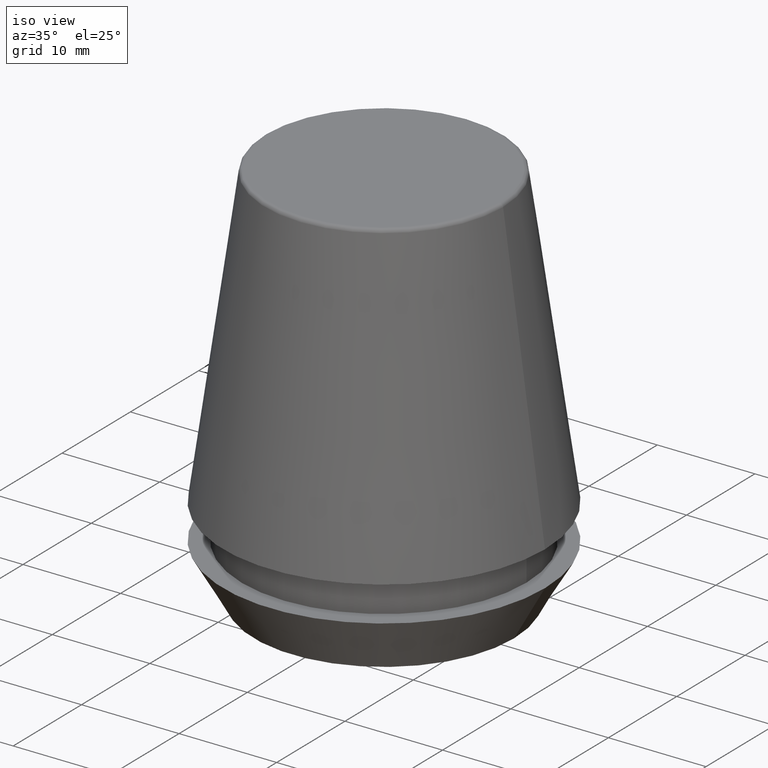
[diagram: clean part render]
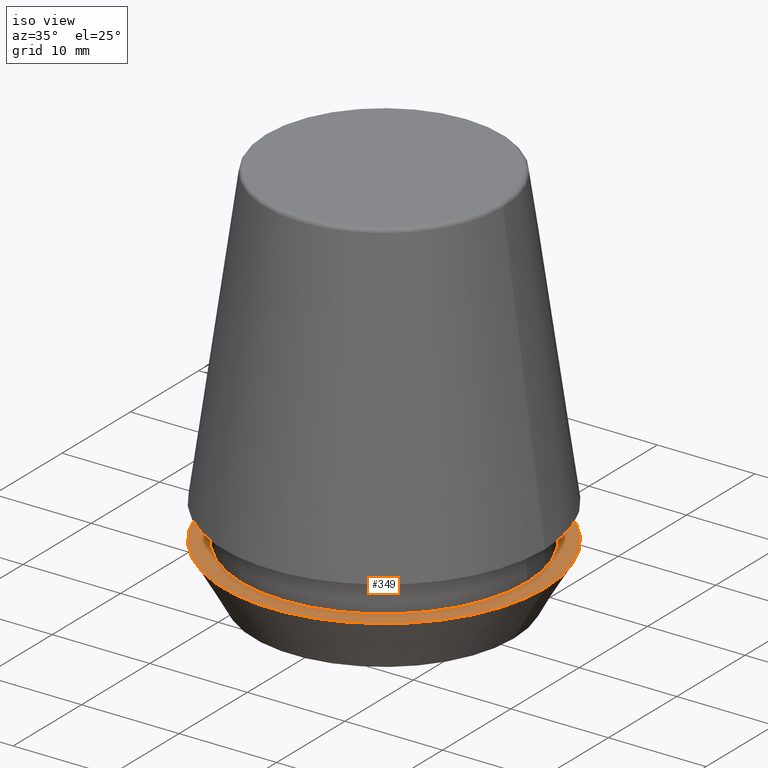
[diagram: same view with one face highlighted and labeled with its STEP entity id]
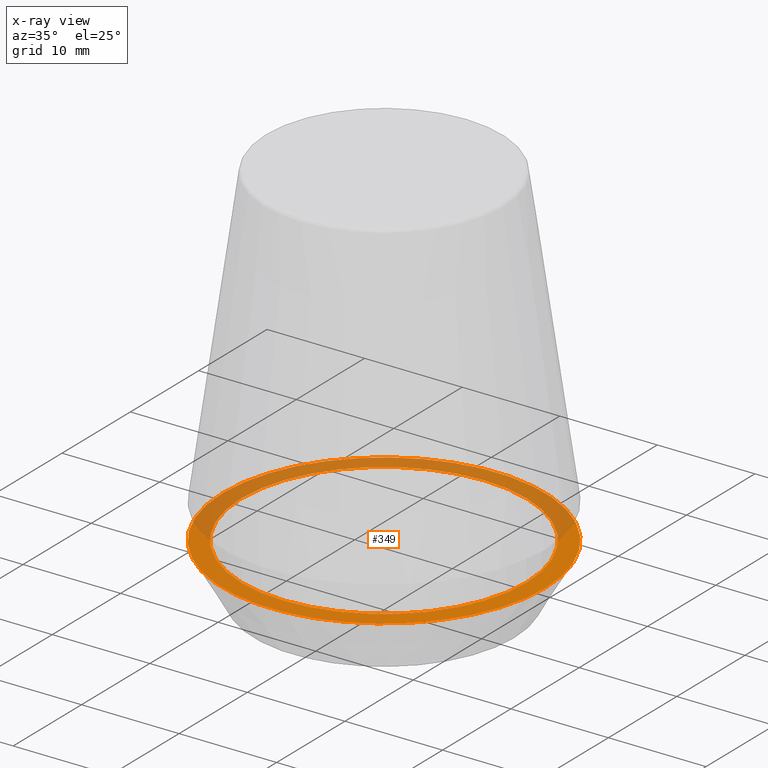
[diagram: x-ray of the same camera — body ghosted, the highlighted face saturated]
A machine part, iso view. The second image highlights one B-rep face of the part: STEP entity #349.
The next image is the same camera in x-ray: the body ghosted, the highlighted face saturated — about 46% of this face is hidden behind the body in this view.
In plain terms, the highlighted planar face has unit normal (0, 0, -1).
Its self-contained STEP definition (entity closure, byte-faithful):
#5 = VERTEX_POINT ( 'NONE', #70 ) ;
#10 = FACE_OUTER_BOUND ( 'NONE', #213, .T. ) ;
#15 = EDGE_LOOP ( 'NONE', ( #243, #142 ) ) ;
#21 = FACE_BOUND ( 'NONE', #15, .T. ) ;
#23 = VERTEX_POINT ( 'NONE', #118 ) ;
#24 = EDGE_CURVE ( 'NONE', #85, #5, #264, .T. ) ;
#25 = CARTESIAN_POINT ( 'NONE',  ( 0.0000000000000000000, 0.0000000000000000000, 5.500000000000005300 ) ) ;
#54 = DIRECTION ( 'NONE',  ( -1.000000000000000000, 0.0000000000000000000, -0.0000000000000000000 ) ) ;
#56 = DIRECTION ( 'NONE',  ( 1.000000000000000000, 0.0000000000000000000, 0.0000000000000000000 ) ) ;
#70 = CARTESIAN_POINT ( 'NONE',  ( 14.60000000000000000, 0.0000000000000000000, 5.500000000000005300 ) ) ;
#85 = VERTEX_POINT ( 'NONE', #153 ) ;
#87 = DIRECTION ( 'NONE',  ( -0.0000000000000000000, -0.0000000000000000000, 1.000000000000000000 ) ) ;
#101 = CARTESIAN_POINT ( 'NONE',  ( 0.0000000000000000000, 16.50000000000000000, 5.500000000000002700 ) ) ;
#102 = ORIENTED_EDGE ( 'NONE', *, *, #195, .T. ) ;
#110 = DIRECTION ( 'NONE',  ( 1.000000000000000000, 0.0000000000000000000, 0.0000000000000000000 ) ) ;
#111 = DIRECTION ( 'NONE',  ( 1.000000000000000000, 0.0000000000000000000, 0.0000000000000000000 ) ) ;
#114 = VERTEX_POINT ( 'NONE', #218 ) ;
#116 = CIRCLE ( 'NONE', #295, 16.50000000000000000 ) ;
#118 = CARTESIAN_POINT ( 'NONE',  ( -16.50000000000000000, 2.020667218593133100E-015, 5.500000000000005300 ) ) ;
#134 = PLANE ( 'NONE',  #309 ) ;
#136 = CIRCLE ( 'NONE', #299, 14.60000000000000000 ) ;
#141 = CARTESIAN_POINT ( 'NONE',  ( 0.0000000000000000000, 0.0000000000000000000, 5.500000000000005300 ) ) ;
#142 = ORIENTED_EDGE ( 'NONE', *, *, #24, .F. ) ;
#150 = DIRECTION ( 'NONE',  ( -0.0000000000000000000, -0.0000000000000000000, 1.000000000000000000 ) ) ;
#152 = CIRCLE ( 'NONE', #356, 16.50000000000000000 ) ;
#153 = CARTESIAN_POINT ( 'NONE',  ( -14.60000000000000000, 1.787984326755135800E-015, 5.500000000000005300 ) ) ;
#157 = ORIENTED_EDGE ( 'NONE', *, *, #369, .T. ) ;
#164 = AXIS2_PLACEMENT_3D ( 'NONE', #212, #150, #111 ) ;
#177 = EDGE_CURVE ( 'NONE', #5, #85, #136, .T. ) ;
#195 = EDGE_CURVE ( 'NONE', #114, #23, #116, .T. ) ;
#212 = CARTESIAN_POINT ( 'NONE',  ( 0.0000000000000000000, 0.0000000000000000000, 5.500000000000005300 ) ) ;
#213 = EDGE_LOOP ( 'NONE', ( #102, #157 ) ) ;
#218 = CARTESIAN_POINT ( 'NONE',  ( 16.50000000000000000, 0.0000000000000000000, 5.500000000000005300 ) ) ;
#229 = DIRECTION ( 'NONE',  ( 0.0000000000000000000, 0.0000000000000000000, -1.000000000000000000 ) ) ;
#232 = DIRECTION ( 'NONE',  ( -0.0000000000000000000, -0.0000000000000000000, 1.000000000000000000 ) ) ;
#243 = ORIENTED_EDGE ( 'NONE', *, *, #177, .F. ) ;
#244 = DIRECTION ( 'NONE',  ( 1.000000000000000000, 0.0000000000000000000, 0.0000000000000000000 ) ) ;
#264 = CIRCLE ( 'NONE', #164, 14.60000000000000000 ) ;
#295 = AXIS2_PLACEMENT_3D ( 'NONE', #141, #87, #110 ) ;
#299 = AXIS2_PLACEMENT_3D ( 'NONE', #364, #311, #244 ) ;
#309 = AXIS2_PLACEMENT_3D ( 'NONE', #101, #229, #54 ) ;
#311 = DIRECTION ( 'NONE',  ( -0.0000000000000000000, -0.0000000000000000000, 1.000000000000000000 ) ) ;
#349 = ADVANCED_FACE ( 'NONE', ( #21, #10 ), #134, .F. ) ;
#356 = AXIS2_PLACEMENT_3D ( 'NONE', #25, #232, #56 ) ;
#364 = CARTESIAN_POINT ( 'NONE',  ( 0.0000000000000000000, 0.0000000000000000000, 5.500000000000005300 ) ) ;
#369 = EDGE_CURVE ( 'NONE', #23, #114, #152, .T. ) ;